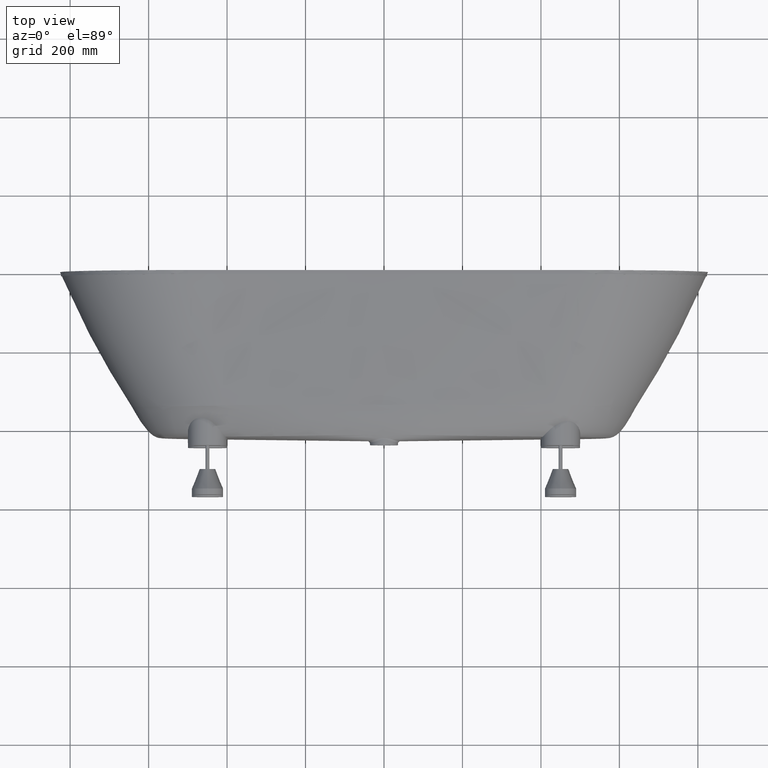
[diagram: clean part render]
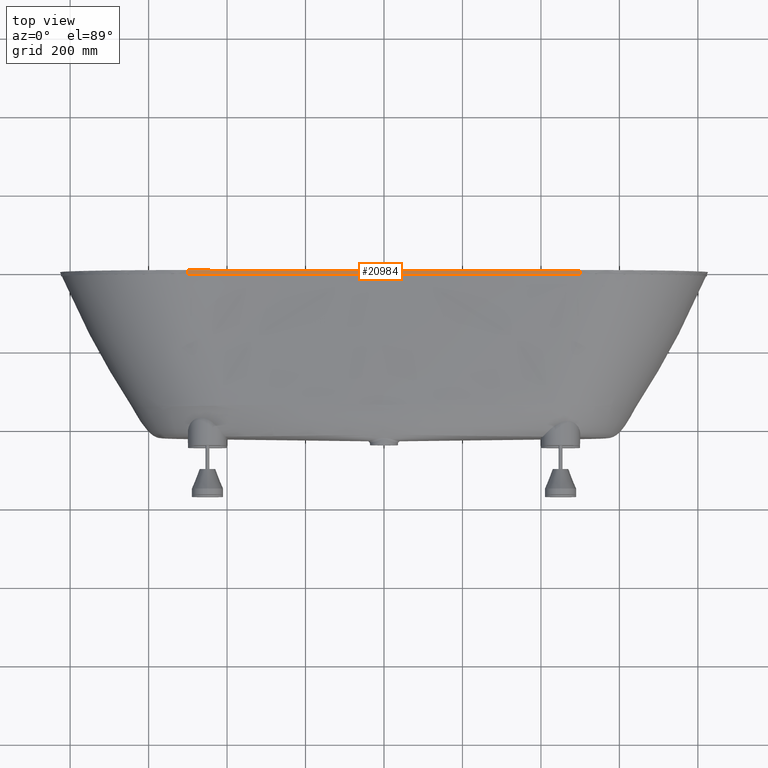
[diagram: same view with one face highlighted and labeled with its STEP entity id]
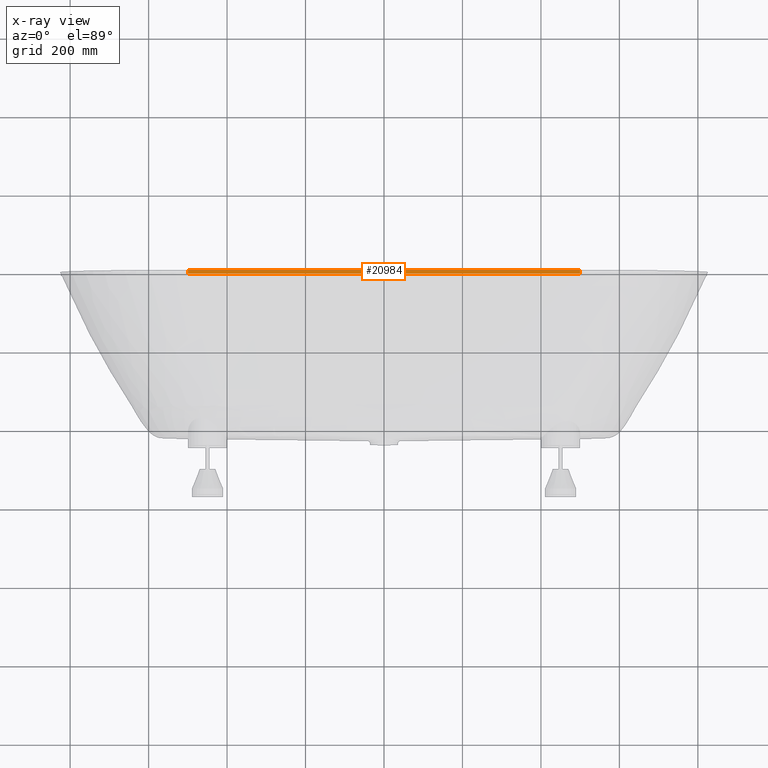
[diagram: x-ray of the same camera — body ghosted, the highlighted face saturated]
A machine part, top view. The second image highlights one B-rep face of the part: STEP entity #20984.
The next image is the same camera in x-ray: the body ghosted, the highlighted face saturated — about 0% of this face is hidden behind the body in this view.
In plain terms, the highlighted planar face has unit normal (0, -0, 1).
Its self-contained STEP definition (entity closure, byte-faithful):
#1648 = PLANE ( 'NONE',  #66946 ) ;
#1822 = CARTESIAN_POINT ( 'NONE',  ( -500.0000000000000000, -10.00000000000000000, 324.9999999999999400 ) ) ;
#5668 = LINE ( 'NONE', #51885, #53113 ) ;
#5966 = EDGE_CURVE ( 'NONE', #46316, #24059, #5668, .T. ) ;
#7876 = ORIENTED_EDGE ( 'NONE', *, *, #64964, .F. ) ;
#9097 = DIRECTION ( 'NONE',  ( 0.0000000000000000000, 1.000000000000000000, 0.0000000000000000000 ) ) ;
#18515 = VECTOR ( 'NONE', #9097, 1000.000000000000000 ) ;
#20984 = ADVANCED_FACE ( 'NONE', ( #39747 ), #1648, .T. ) ;
#24059 = VERTEX_POINT ( 'NONE', #37360 ) ;
#24404 = VERTEX_POINT ( 'NONE', #28044 ) ;
#27747 = VERTEX_POINT ( 'NONE', #67107 ) ;
#28044 = CARTESIAN_POINT ( 'NONE',  ( -500.0000000000000000, -10.00000000000000000, 324.9999999999999400 ) ) ;
#30930 = ORIENTED_EDGE ( 'NONE', *, *, #5966, .T. ) ;
#33517 = ORIENTED_EDGE ( 'NONE', *, *, #47951, .T. ) ;
#35229 = CARTESIAN_POINT ( 'NONE',  ( -500.0000000000000000, -10.00000000000000000, 324.9999999999999400 ) ) ;
#35327 = EDGE_LOOP ( 'NONE', ( #7876, #41978, #33517, #30930 ) ) ;
#35361 = DIRECTION ( 'NONE',  ( 1.000000000000000000, 0.0000000000000000000, -1.665334536937734300E-016 ) ) ;
#37360 = CARTESIAN_POINT ( 'NONE',  ( 500.0000000000002300, 0.0000000000000000000, 324.9999999999997700 ) ) ;
#39747 = FACE_OUTER_BOUND ( 'NONE', #35327, .T. ) ;
#40350 = LINE ( 'NONE', #56079, #18515 ) ;
#40433 = CARTESIAN_POINT ( 'NONE',  ( -500.0000000000000000, 0.0000000000000000000, 324.9999999999999400 ) ) ;
#41978 = ORIENTED_EDGE ( 'NONE', *, *, #65047, .F. ) ;
#44611 = LINE ( 'NONE', #40433, #46852 ) ;
#44866 = VECTOR ( 'NONE', #51102, 1000.000000000000000 ) ;
#45125 = CARTESIAN_POINT ( 'NONE',  ( 500.0000000000002300, -10.00000000000000000, 324.9999999999997700 ) ) ;
#46316 = VERTEX_POINT ( 'NONE', #45125 ) ;
#46852 = VECTOR ( 'NONE', #35361, 1000.000000000000000 ) ;
#47951 = EDGE_CURVE ( 'NONE', #24404, #46316, #58033, .T. ) ;
#51102 = DIRECTION ( 'NONE',  ( 1.000000000000000000, 0.0000000000000000000, -1.665334536937734300E-016 ) ) ;
#51885 = CARTESIAN_POINT ( 'NONE',  ( 500.0000000000002300, -10.00000000000000000, 324.9999999999997700 ) ) ;
#51897 = DIRECTION ( 'NONE',  ( 0.0000000000000000000, 1.000000000000000000, 0.0000000000000000000 ) ) ;
#53113 = VECTOR ( 'NONE', #51897, 1000.000000000000000 ) ;
#56079 = CARTESIAN_POINT ( 'NONE',  ( -500.0000000000000000, -10.00000000000000000, 324.9999999999999400 ) ) ;
#58033 = LINE ( 'NONE', #35229, #44866 ) ;
#64964 = EDGE_CURVE ( 'NONE', #27747, #24059, #44611, .T. ) ;
#65047 = EDGE_CURVE ( 'NONE', #24404, #27747, #40350, .T. ) ;
#66946 = AXIS2_PLACEMENT_3D ( 'NONE', #1822, #68125, #68044 ) ;
#67107 = CARTESIAN_POINT ( 'NONE',  ( -500.0000000000000000, 0.0000000000000000000, 324.9999999999999400 ) ) ;
#68044 = DIRECTION ( 'NONE',  ( 1.000000000000000000, 0.0000000000000000000, -1.665334536937734300E-016 ) ) ;
#68125 = DIRECTION ( 'NONE',  ( 1.665334536937734300E-016, -0.0000000000000000000, 1.000000000000000000 ) ) ;